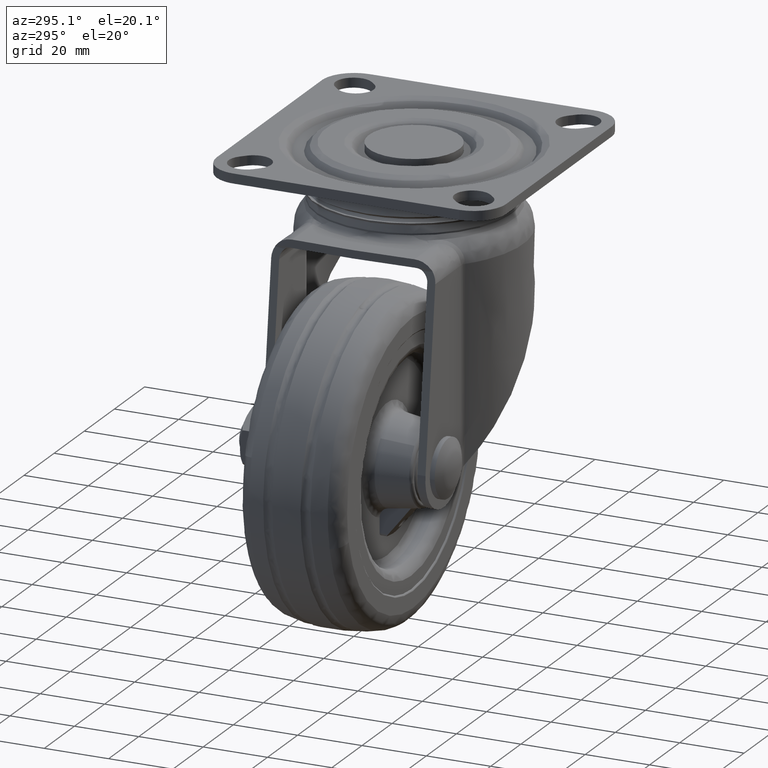
[diagram: clean part render]
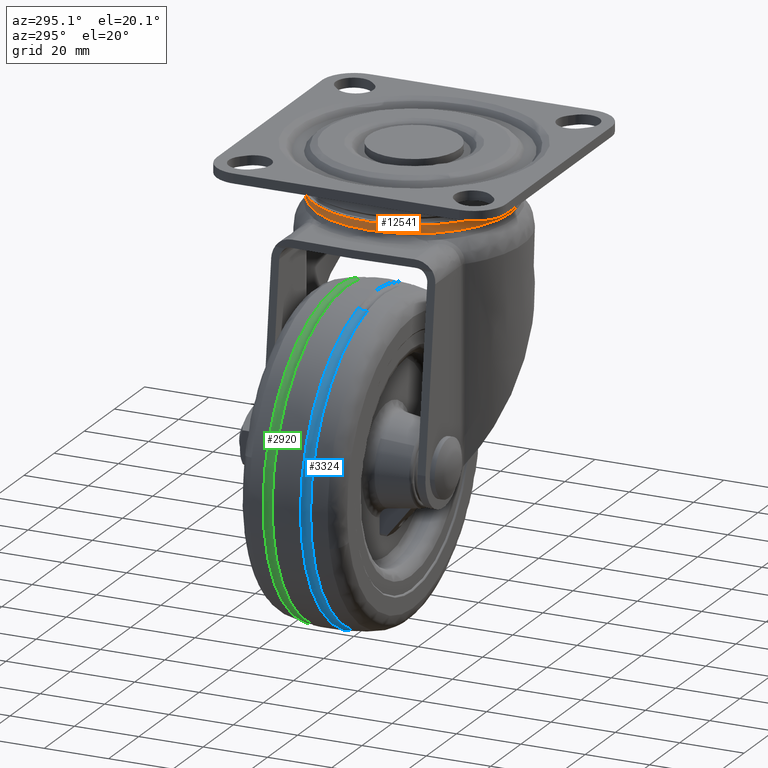
[diagram: same view with three faces highlighted in distinct colors, each labeled with its STEP entity id]
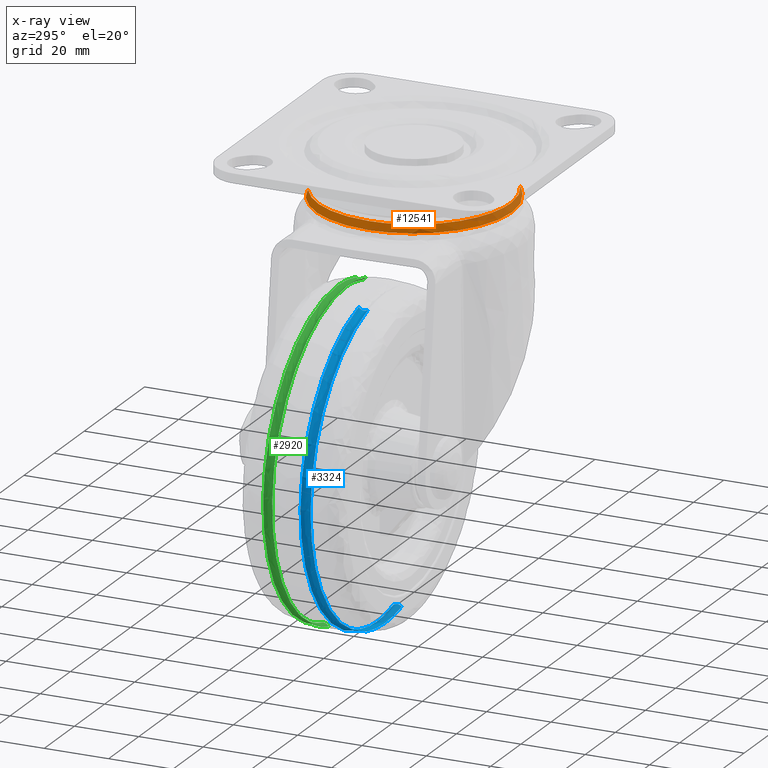
[diagram: x-ray of the same camera — body ghosted, the three highlighted faces saturated]
A machine part, auxiliary view with three faces highlighted in distinct colors.
The next image is the same camera in x-ray (body ghosted, the three faces saturated) — at least one of them is partly hidden behind the body in this view.
Their STEP definitions:

[orange] entity #12541 — the highlighted face is a freeform B-spline surface patch.
#12005=CARTESIAN_POINT('',(14.073565049866950,-26.379603227402718,-13.800000000326911));
#12006=VERTEX_POINT('',#12005);
#12020=CARTESIAN_POINT('',(-14.073565049866950,26.379603227402718,-13.800000000326911));
#12021=VERTEX_POINT('',#12020);
#12037=CARTESIAN_POINT('',(-29.898974892762801,0.0,-13.800000000000120));
#12038=VERTEX_POINT('',#12037);
#12039=CARTESIAN_POINT('',(-29.898974892762801,0.0,-13.800000000000120));
#12040=CARTESIAN_POINT('',(-29.898974892802048,17.936719043440196,-13.800000000163514));
#12041=CARTESIAN_POINT('',(-14.073565049866952,26.379603227402718,-13.800000000326916));
#12049=(BOUNDED_CURVE()B_SPLINE_CURVE(2,(#12039,#12040,#12041),.UNSPECIFIED.,.F.,.U.)B_SPLINE_CURVE_WITH_KNOTS((3,3),(0.0,0.169885466191445),.UNSPECIFIED.)CURVE()GEOMETRIC_REPRESENTATION_ITEM()RATIONAL_B_SPLINE_CURVE((1.0,0.800966795910255,0.872436381135416))REPRESENTATION_ITEM(''));
#12050=EDGE_CURVE('',#12038,#12021,#12049,.T.);
#12052=CARTESIAN_POINT('',(14.073565049866950,-26.379603227402715,-13.800000000326914));
#12053=CARTESIAN_POINT('',(7.476826567686530,-29.898974892898902,-13.800000000302397));
#12054=CARTESIAN_POINT('',(6.279498E-011,-29.898974892880499,-13.800000000261541));
#12055=CARTESIAN_POINT('',(-29.898974892739247,-29.898974892806937,-13.800000000098144));
#12056=CARTESIAN_POINT('',(-29.898974892762801,0.0,-13.800000000000120));
#12064=(BOUNDED_CURVE()B_SPLINE_CURVE(2,(#12052,#12053,#12054,#12055,#12056),.UNSPECIFIED.,.F.,.U.)B_SPLINE_CURVE_WITH_KNOTS((3,2,3),(0.669885466191445,0.750000000000000,1.0),.UNSPECIFIED.)CURVE()GEOMETRIC_REPRESENTATION_ITEM()RATIONAL_B_SPLINE_CURVE((0.872436381135417,0.906139985276292,1.0,0.707106781186547,1.0))REPRESENTATION_ITEM(''));
#12065=EDGE_CURVE('',#12006,#12038,#12064,.T.);
#12388=CARTESIAN_POINT('',(14.356469931048091,-26.909882406263169,-16.300008999993750));
#12389=VERTEX_POINT('',#12388);
#12390=CARTESIAN_POINT('',(14.073565049866950,-26.379603227402715,-13.800000000326907));
#12391=CARTESIAN_POINT('',(14.356469931070901,-26.909882406249331,-14.977758524370760));
#12392=CARTESIAN_POINT('',(14.356469931048089,-26.909882406263165,-16.300008999993754));
#12400=(BOUNDED_CURVE()B_SPLINE_CURVE(2,(#12390,#12391,#12392),.UNSPECIFIED.,.F.,.U.)B_SPLINE_CURVE_WITH_KNOTS((3,3),(-1.427451880174909,-0.562073949971355),.UNSPECIFIED.)CURVE()GEOMETRIC_REPRESENTATION_ITEM()RATIONAL_B_SPLINE_CURVE((0.942962511735772,0.917147045707271,0.943595087210526))REPRESENTATION_ITEM(''));
#12401=EDGE_CURVE('',#12006,#12389,#12400,.T.);
#12433=CARTESIAN_POINT('',(-14.356469931048091,26.909882406263161,-16.300008999993750));
#12434=VERTEX_POINT('',#12433);
#12447=CARTESIAN_POINT('',(-14.073565049866950,26.379603227402715,-13.800000000326907));
#12448=CARTESIAN_POINT('',(-14.356469931070901,26.909882406249331,-14.977758524370760));
#12449=CARTESIAN_POINT('',(-14.356469931048089,26.909882406263165,-16.300008999993754));
#12457=(BOUNDED_CURVE()B_SPLINE_CURVE(2,(#12447,#12448,#12449),.UNSPECIFIED.,.F.,.U.)B_SPLINE_CURVE_WITH_KNOTS((3,3),(-1.427451880174908,-0.562073949971355),.UNSPECIFIED.)CURVE()GEOMETRIC_REPRESENTATION_ITEM()RATIONAL_B_SPLINE_CURVE((0.942962511735772,0.917147045707271,0.943595087210526))REPRESENTATION_ITEM(''));
#12458=EDGE_CURVE('',#12021,#12434,#12457,.T.);
#12463=CARTESIAN_POINT('',(14.781507023864556,-25.934314056374600,-13.686415076328570));
#12464=CARTESIAN_POINT('',(14.415641972534775,-26.129503709340614,-13.686415076328563));
#12465=CARTESIAN_POINT('',(-12.281489605832965,-40.372470696839521,-13.686415076328565));
#12466=CARTESIAN_POINT('',(-26.326980151336244,-14.045490545503275,-13.686415076328569));
#12467=CARTESIAN_POINT('',(-40.372470696839521,12.281489605832963,-13.686415076328565));
#12468=CARTESIAN_POINT('',(-13.675339118500291,26.524456593316671,-13.686415076328567));
#12469=CARTESIAN_POINT('',(-13.309474067198364,26.719646246267821,-13.686415076328567));
#12470=CARTESIAN_POINT('',(15.124884523843031,-26.536773596525485,-14.969896073237388));
#12471=CARTESIAN_POINT('',(14.750520350843704,-26.736497545957281,-14.969896073237386));
#12472=CARTESIAN_POINT('',(-12.566791178267627,-41.310331635744696,-14.969896073237390));
#12473=CARTESIAN_POINT('',(-26.938561407006166,-14.371770228738532,-14.969896073237392));
#12474=CARTESIAN_POINT('',(-41.310331635744696,12.566791178267627,-14.969896073237390));
#12475=CARTESIAN_POINT('',(-13.993020106662536,27.140625268039489,-14.969896073237386));
#12476=CARTESIAN_POINT('',(-13.618655933691709,27.340349217456076,-14.969896073237384));
#12477=CARTESIAN_POINT('',(15.108042291073925,-26.507223716845477,-16.428202481602849));
#12478=CARTESIAN_POINT('',(14.734094989260099,-26.706725264761371,-16.428202481602852));
#12479=CARTESIAN_POINT('',(-12.552797496408346,-41.264330740988704,-16.428202481602863));
#12480=CARTESIAN_POINT('',(-26.908564118698525,-14.355766622290178,-16.428202481602860));
#12481=CARTESIAN_POINT('',(-41.264330740988704,12.552797496408346,-16.428202481602863));
#12482=CARTESIAN_POINT('',(-13.977438255349387,27.110402972620133,-16.428202481602849));
#12483=CARTESIAN_POINT('',(-13.603490953564028,27.309904520520831,-16.428202481602860));
#12491=(BOUNDED_SURFACE()B_SPLINE_SURFACE(2,2,((#12463,#12470,#12477),(#12464,#12471,#12478),(#12465,#12472,#12479),(#12466,#12473,#12480),(#12467,#12474,#12481),(#12468,#12475,#12482),(#12469,#12476,#12483)),.UNSPECIFIED.,.F.,.F.,.U.)B_SPLINE_SURFACE_WITH_KNOTS((3,1,2,1,3),(3,3),(0.0,1.010631580030875,51.542210577989707,102.073789575948600,103.084421155901100),(0.0,2.867891975747639),.UNSPECIFIED.)GEOMETRIC_REPRESENTATION_ITEM()RATIONAL_B_SPLINE_SURFACE(((0.956751107380312,0.925119020616230,0.957455030935860),(0.951211489807911,0.919762553773771,0.951911337624985),(0.668690993635108,0.646582744827387,0.669182978790046),(0.945671872235510,0.914406086931313,0.946367644314110),(0.668690993635108,0.646582744827387,0.669182978790046),(0.951211489807482,0.919762553773356,0.951911337624556),(0.956751107379454,0.925119020615400,0.957455030935001)))REPRESENTATION_ITEM('')SURFACE());
#12492=ORIENTED_EDGE('',*,*,#12050,.T.);
#12493=ORIENTED_EDGE('',*,*,#12458,.T.);
#12494=CARTESIAN_POINT('',(-30.500000000000000,0.0,-16.300008999999850));
#12495=VERTEX_POINT('',#12494);
#12496=CARTESIAN_POINT('',(-30.500000000000000,0.0,-16.300008999999850));
#12497=CARTESIAN_POINT('',(-30.500000000000004,18.297280518343474,-16.300008999996805));
#12498=CARTESIAN_POINT('',(-14.356469931048098,26.909882406263161,-16.300008999993747));
#12506=(BOUNDED_CURVE()B_SPLINE_CURVE(2,(#12496,#12497,#12498),.UNSPECIFIED.,.F.,.U.)B_SPLINE_CURVE_WITH_KNOTS((3,3),(0.0,0.169885466191720),.UNSPECIFIED.)CURVE()GEOMETRIC_REPRESENTATION_ITEM()RATIONAL_B_SPLINE_CURVE((1.0,0.800966795909932,0.872436381135648))REPRESENTATION_ITEM(''));
#12507=EDGE_CURVE('',#12495,#12434,#12506,.T.);
#12508=ORIENTED_EDGE('',*,*,#12507,.F.);
#12509=CARTESIAN_POINT('',(-14.083318197924839,-27.053837963138079,-16.300009000014001));
#12510=VERTEX_POINT('',#12509);
#12511=CARTESIAN_POINT('',(-14.083318197924836,-27.053837963138076,-16.300009000014001));
#12512=CARTESIAN_POINT('',(-30.499999999998980,-18.507865525229398,-16.300009000007442));
#12513=CARTESIAN_POINT('',(-30.500000000000000,0.0,-16.300008999999850));
#12521=(BOUNDED_CURVE()B_SPLINE_CURVE(2,(#12511,#12512,#12513),.UNSPECIFIED.,.F.,.U.)B_SPLINE_CURVE_WITH_KNOTS((3,3),(0.828552041301069,1.0),.UNSPECIFIED.)CURVE()GEOMETRIC_REPRESENTATION_ITEM()RATIONAL_B_SPLINE_CURVE((0.873773921761669,0.799136222070697,1.0))REPRESENTATION_ITEM(''));
#12522=EDGE_CURVE('',#12510,#12495,#12521,.T.);
#12523=ORIENTED_EDGE('',*,*,#12522,.F.);
#12524=CARTESIAN_POINT('',(14.356469931048091,-26.909882406263169,-16.300008999993750));
#12525=CARTESIAN_POINT('',(12.453181540129870,-27.925748417936099,-16.300008999995100));
#12526=CARTESIAN_POINT('',(9.651208042955560,-29.057200590294109,-16.300008999996908));
#12527=CARTESIAN_POINT('',(5.377636686964890,-30.085805339326878,-16.300009000000010));
#12528=CARTESIAN_POINT('',(1.930119505958197,-30.523633927419031,-16.300009000002369));
#12529=CARTESIAN_POINT('',(-2.160928374790150,-30.513335887508521,-16.300009000005300));
#12530=CARTESIAN_POINT('',(-6.294286140065233,-29.951398636289820,-16.300009000008188));
#12531=CARTESIAN_POINT('',(-10.378501734257370,-28.780711865338610,-16.300009000011329));
#12532=CARTESIAN_POINT('',(-12.921489068285370,-27.658694789417620,-16.300009000013080));
#12533=CARTESIAN_POINT('',(-14.083318197924839,-27.053837963138079,-16.300009000014001));
#12534=B_SPLINE_CURVE_WITH_KNOTS('',3,(#12524,#12525,#12526,#12527,#12528,#12529,#12530,#12531,#12532,#12533),.UNSPECIFIED.,.F.,.U.,(4,1,1,1,1,1,1,4),(-0.000000031275857,6.472162224791738,9.014750819830436,13.175364372881400,16.873619080567320,21.265406665802161,25.657156557545441,29.586701395527911),.UNSPECIFIED.);
#12535=EDGE_CURVE('',#12389,#12510,#12534,.T.);
#12536=ORIENTED_EDGE('',*,*,#12535,.F.);
#12537=ORIENTED_EDGE('',*,*,#12401,.F.);
#12538=ORIENTED_EDGE('',*,*,#12065,.T.);
#12539=EDGE_LOOP('',(#12492,#12493,#12508,#12523,#12536,#12537,#12538));
#12540=FACE_OUTER_BOUND('',#12539,.T.);
#12541=ADVANCED_FACE('',(#12540),#12491,.T.);

[blue] entity #3324 — the highlighted face is a freeform B-spline surface patch.
#3061=CARTESIAN_POINT('',(-35.0,-4.408305840501527,-131.805312161679410));
#3062=VERTEX_POINT('',#3061);
#3076=CARTESIAN_POINT('',(-46.169861854131433,-4.408307395997517,-33.463415006400552));
#3077=VERTEX_POINT('',#3076);
#3078=CARTESIAN_POINT('',(-46.169861854131433,-4.408307395997517,-33.463415006400552));
#3079=CARTESIAN_POINT('',(-49.302227609230762,-4.408307385114627,-34.183823392340877));
#3080=CARTESIAN_POINT('',(-54.615761798780269,-4.408307357848807,-35.963173630638892));
#3081=CARTESIAN_POINT('',(-61.803488880341639,-4.408307298282417,-39.805872105192158));
#3082=CARTESIAN_POINT('',(-67.359048319746250,-4.408307233948585,-43.933864579889793));
#3083=CARTESIAN_POINT('',(-71.956622635114627,-4.408307163439800,-48.443046981514293));
#3084=CARTESIAN_POINT('',(-75.165240153749735,-4.408307101055132,-52.424006973745023));
#3085=CARTESIAN_POINT('',(-78.088034298201705,-4.408307031716677,-56.842228914672233));
#3086=CARTESIAN_POINT('',(-80.327437803313430,-4.408306964434178,-61.123417679690853));
#3087=CARTESIAN_POINT('',(-82.469305707012467,-4.408306878489925,-66.584836506742079));
#3088=CARTESIAN_POINT('',(-84.019661856830965,-4.408306787660457,-72.349466856912386));
#3089=CARTESIAN_POINT('',(-84.948940528180472,-4.408306671967181,-79.681598213801607));
#3090=CARTESIAN_POINT('',(-84.757272507045130,-4.408306562553584,-86.604979282241374));
#3091=CARTESIAN_POINT('',(-83.764461478032757,-4.408306469479401,-92.486035713920629));
#3092=CARTESIAN_POINT('',(-82.445475390835341,-4.408306391291115,-97.421649498989709));
#3093=CARTESIAN_POINT('',(-80.439694526728232,-4.408306306978246,-102.737969763840700));
#3094=CARTESIAN_POINT('',(-77.173074004199933,-4.408306210104151,-108.836644270113790));
#3095=CARTESIAN_POINT('',(-73.380355748682618,-4.408306128988490,-113.932581315817700));
#3096=CARTESIAN_POINT('',(-69.146023623778262,-4.408306057841518,-118.393109772716700));
#3097=CARTESIAN_POINT('',(-65.460741990235704,-4.408306007891116,-121.517563828079200));
#3098=CARTESIAN_POINT('',(-61.168744034811930,-4.408305960744084,-124.458435650562290));
#3099=CARTESIAN_POINT('',(-57.119332681742918,-4.408305924344180,-126.721531307333000));
#3100=CARTESIAN_POINT('',(-52.252502003237979,-4.408305890411465,-128.820220644424010));
#3101=CARTESIAN_POINT('',(-47.370528390758970,-4.408305865623023,-130.339976028950700));
#3102=CARTESIAN_POINT('',(-41.522676889559790,-4.408305846304985,-131.503746322455100));
#3103=CARTESIAN_POINT('',(-37.457843366670552,-4.408305840890526,-131.805469995879690));
#3104=CARTESIAN_POINT('',(-35.0,-4.408305840501527,-131.805312161679410));
#3105=B_SPLINE_CURVE_WITH_KNOTS('',3,(#3078,#3079,#3080,#3081,#3082,#3083,#3084,#3085,#3086,#3087,#3088,#3089,#3090,#3091,#3092,#3093,#3094,#3095,#3096,#3097,#3098,#3099,#3100,#3101,#3102,#3103,#3104),.UNSPECIFIED.,.F.,.U.,(4,1,1,1,1,1,1,1,1,1,1,1,1,1,1,1,1,1,1,1,1,1,1,1,4),(0.000000087714824,9.642330463001855,16.732280097808140,24.389468871214660,30.345052482250850,36.017041409808947,39.703809663414823,46.226628341976003,50.480606520047118,57.286960901873371,64.093335095321251,72.601222069173801,77.989546035402810,81.959918420604367,87.915534286684235,95.005485224787463,102.662673779947400,106.916666242018000,113.439454863829000,117.126243963738700,122.514612192306300,127.335820377456300,133.007795155829800,137.828960016580400,145.202466896015410),.UNSPECIFIED.);
#3106=EDGE_CURVE('',#3077,#3062,#3105,.T.);
#3154=CARTESIAN_POINT('',(-23.830138055161711,-4.408306518349894,-130.536615160144010));
#3155=VERTEX_POINT('',#3154);
#3184=CARTESIAN_POINT('',(-35.0,-4.408305840501527,-131.805312161679410));
#3185=CARTESIAN_POINT('',(-29.343018644268330,-4.408306170293177,-131.805310912014050));
#3186=CARTESIAN_POINT('',(-23.830138055161711,-4.408306518349894,-130.536615160144010));
#3194=(BOUNDED_CURVE()B_SPLINE_CURVE(2,(#3184,#3185,#3186),.UNSPECIFIED.,.F.,.U.)B_SPLINE_CURVE_WITH_KNOTS((3,3),(0.0,0.038352880658712),.UNSPECIFIED.)CURVE()GEOMETRIC_REPRESENTATION_ITEM()RATIONAL_B_SPLINE_CURVE((1.0,0.955066805332406,0.923920150286420))REPRESENTATION_ITEM(''));
#3195=EDGE_CURVE('',#3062,#3155,#3194,.T.);
#3203=CARTESIAN_POINT('',(-44.770443407940277,-7.457534102860008,-33.362675527515918));
#3204=CARTESIAN_POINT('',(-45.442038359418916,-7.457534102860008,-33.517231666524374));
#3205=CARTESIAN_POINT('',(-94.447917921927981,-7.457534102860007,-44.795100145462250));
#3206=CARTESIAN_POINT('',(-83.326416332324683,-7.457534102860008,-93.121516477786912));
#3207=CARTESIAN_POINT('',(-72.204914742721371,-7.457534102860007,-141.447932810111580));
#3208=CARTESIAN_POINT('',(-23.199039806210951,-7.457534102860007,-130.170065395768520));
#3209=CARTESIAN_POINT('',(-22.527449373902080,-7.457534102860007,-130.015510296770090));
#3210=CARTESIAN_POINT('',(-44.601587588313222,-6.836483543638644,-34.203241043258096));
#3211=CARTESIAN_POINT('',(-45.261575828483622,-6.836483543638645,-34.355126095352574));
#3212=CARTESIAN_POINT('',(-93.420520649694510,-6.836483543638644,-45.438086969164800));
#3213=CARTESIAN_POINT('',(-82.491224284356662,-6.836483543638644,-92.929311253521462));
#3214=CARTESIAN_POINT('',(-71.561927919018814,-6.836483543638644,-140.420535537878150));
#3215=CARTESIAN_POINT('',(-23.402987643858644,-6.836483543638644,-129.337575710262060));
#3216=CARTESIAN_POINT('',(-22.743003844756313,-6.836483543638645,-129.185691680203750));
#3217=CARTESIAN_POINT('',(-44.626422991737762,-5.785625111829236,-34.079610221801587));
#3218=CARTESIAN_POINT('',(-45.288118353157572,-5.785625111829235,-34.231888138774757));
#3219=CARTESIAN_POINT('',(-93.571630784894666,-5.785625111829234,-45.343516126427012));
#3220=CARTESIAN_POINT('',(-82.614064773325623,-5.785625111829234,-92.957580899752642));
#3221=CARTESIAN_POINT('',(-71.656498761756581,-5.785625111829234,-140.571645673078280));
#3222=CARTESIAN_POINT('',(-23.372990887828973,-5.785625111829232,-129.460018734328140));
#3223=CARTESIAN_POINT('',(-22.711299978964487,-5.785625111829234,-129.307741842034860));
#3224=CARTESIAN_POINT('',(-44.651176987079502,-4.738211293692380,-33.956384650381686));
#3225=CARTESIAN_POINT('',(-45.314573873968158,-4.738211293692380,-34.109054144459932));
#3226=CARTESIAN_POINT('',(-93.722245595489682,-4.738211293692380,-45.249255277888338));
#3227=CARTESIAN_POINT('',(-82.736502602892472,-4.738211293692380,-92.985757880780810));
#3228=CARTESIAN_POINT('',(-71.750759610295262,-4.738211293692380,-140.722260483673300));
#3229=CARTESIAN_POINT('',(-23.343092458303470,-4.738211293692380,-129.582060401844360));
#3230=CARTESIAN_POINT('',(-22.679700035419721,-4.738211293692381,-129.429391935080840));
#3231=CARTESIAN_POINT('',(-44.843322351277607,-4.335980095583953,-32.999883609959362));
#3232=CARTESIAN_POINT('',(-45.519926812393720,-4.335980095583953,-33.155592602285409));
#3233=CARTESIAN_POINT('',(-94.891347279313450,-4.335980095583953,-44.517584094225370));
#3234=CARTESIAN_POINT('',(-83.686889036635861,-4.335980095583953,-93.204473130861231));
#3235=CARTESIAN_POINT('',(-72.482430793958230,-4.335980095583953,-141.891362167497110));
#3236=CARTESIAN_POINT('',(-23.111014987543026,-4.335980095583953,-130.529371748092900));
#3237=CARTESIAN_POINT('',(-22.434415079305722,-4.335980095583953,-130.373663803534360));
#3245=(BOUNDED_SURFACE()B_SPLINE_SURFACE(2,2,((#3203,#3210,#3217,#3224,#3231),(#3204,#3211,#3218,#3225,#3232),(#3205,#3212,#3219,#3226,#3233),(#3206,#3213,#3220,#3227,#3234),(#3207,#3214,#3221,#3228,#3235),(#3208,#3215,#3222,#3229,#3236),(#3209,#3216,#3223,#3230,#3237)),.UNSPECIFIED.,.F.,.F.,.U.)B_SPLINE_SURFACE_WITH_KNOTS((3,1,2,1,3),(3,2,3),(0.0,1.655524115398991,84.431157345761775,167.206790576124600,168.862303354170510),(0.0,1.959926086438704,3.914410956391913),.UNSPECIFIED.)GEOMETRIC_REPRESENTATION_ITEM()RATIONAL_B_SPLINE_SURFACE(((0.975668134300791,0.856446042719927,1.011715809787478,0.856877108167809,0.975008272723286),(0.970018947954888,0.851487160575022,1.005857904893739,0.851915730123985,0.969362907021804),(0.681912398004967,0.598585886144110,0.707106781186548,0.598887165711340,0.681451208616026),(0.964369761608984,0.846528278430118,1.0,0.846954352080161,0.963717541320321),(0.681912398004967,0.598585886144110,0.707106781186548,0.598887165711340,0.681451208616026),(0.970018909268154,0.851487126615627,1.005857864777661,0.851915696147498,0.969362868361235),(0.975668056927324,0.856445974801137,1.011715729555321,0.856877040214834,0.975008195402149)))REPRESENTATION_ITEM('')SURFACE());
#3246=ORIENTED_EDGE('',*,*,#3106,.T.);
#3247=ORIENTED_EDGE('',*,*,#3195,.T.);
#3248=CARTESIAN_POINT('',(-23.908319311126320,-7.351242319638072,-130.196850043440410));
#3249=VERTEX_POINT('',#3248);
#3250=CARTESIAN_POINT('',(-23.908319311126320,-7.351242319638072,-130.196850043440410));
#3251=CARTESIAN_POINT('',(-23.935795756473141,-7.243463556759735,-130.077457605603000));
#3252=CARTESIAN_POINT('',(-23.992195748710952,-6.952800454130847,-129.832385690848810));
#3253=CARTESIAN_POINT('',(-24.040022326976981,-6.442660209419794,-129.624571180310600));
#3254=CARTESIAN_POINT('',(-24.049314444134819,-5.913524333546907,-129.584201569493900));
#3255=CARTESIAN_POINT('',(-24.031152613629700,-5.464181694761163,-129.663127040202800));
#3256=CARTESIAN_POINT('',(-23.994394393440100,-5.097334530003401,-129.822858615542910));
#3257=CARTESIAN_POINT('',(-23.931714901888739,-4.715257000878502,-130.095226670571290));
#3258=CARTESIAN_POINT('',(-23.873312692443161,-4.509765332021535,-130.349006014146400));
#3259=CARTESIAN_POINT('',(-23.830138055161711,-4.408306518349894,-130.536615160144010));
#3260=B_SPLINE_CURVE_WITH_KNOTS('',3,(#3250,#3251,#3252,#3253,#3254,#3255,#3256,#3257,#3258,#3259),.UNSPECIFIED.,.F.,.U.,(4,1,1,1,1,1,1,4),(0.000000366110781,0.489562964515132,1.142365964334642,1.631968877564200,2.067072847998684,2.502233595595408,2.828645740783392,3.481409388435796),.UNSPECIFIED.);
#3261=EDGE_CURVE('',#3249,#3155,#3260,.T.);
#3262=ORIENTED_EDGE('',*,*,#3261,.F.);
#3263=CARTESIAN_POINT('',(-35.0,-7.351245960951585,-131.456662309210290));
#3264=VERTEX_POINT('',#3263);
#3265=CARTESIAN_POINT('',(-35.0,-7.351245960951585,-131.456662309210290));
#3266=CARTESIAN_POINT('',(-29.382613463973577,-7.351244140295198,-131.456663870115560));
#3267=CARTESIAN_POINT('',(-23.908319311126320,-7.351242319638072,-130.196850043440350));
#3275=(BOUNDED_CURVE()B_SPLINE_CURVE(2,(#3265,#3266,#3267),.UNSPECIFIED.,.F.,.U.)B_SPLINE_CURVE_WITH_KNOTS((3,3),(0.0,0.038352911149033),.UNSPECIFIED.)CURVE()GEOMETRIC_REPRESENTATION_ITEM()RATIONAL_B_SPLINE_CURVE((1.0,0.955066769610774,0.923920100763604))REPRESENTATION_ITEM(''));
#3276=EDGE_CURVE('',#3264,#3249,#3275,.T.);
#3277=ORIENTED_EDGE('',*,*,#3276,.F.);
#3278=CARTESIAN_POINT('',(-46.091680688871982,-7.351242319599447,-33.803179732934098));
#3279=VERTEX_POINT('',#3278);
#3280=CARTESIAN_POINT('',(-46.091680688871982,-7.351242319599447,-33.803179732934098));
#3281=CARTESIAN_POINT('',(-49.019103372565638,-7.351242332149622,-34.476588553946748));
#3282=CARTESIAN_POINT('',(-53.496712762633067,-7.351242367575690,-35.947466288783787));
#3283=CARTESIAN_POINT('',(-58.803635890704598,-7.351242442104386,-38.574716363373120));
#3284=CARTESIAN_POINT('',(-63.614835837797401,-7.351242530061908,-41.510442878167332));
#3285=CARTESIAN_POINT('',(-68.275319154639334,-7.351242645801142,-45.183708128730750));
#3286=CARTESIAN_POINT('',(-72.490442412973493,-7.351242791141277,-49.610464593813887));
#3287=CARTESIAN_POINT('',(-75.710023944582787,-7.351242930880865,-53.772016816867612));
#3288=CARTESIAN_POINT('',(-78.202462203245858,-7.351243067200392,-57.758077116139049));
#3289=CARTESIAN_POINT('',(-80.576056326247368,-7.351243234011538,-62.558908291020572));
#3290=CARTESIAN_POINT('',(-82.172894293345365,-7.351243386487973,-66.882131283352294));
#3291=CARTESIAN_POINT('',(-83.486040629088393,-7.351243564927106,-71.878378754038522));
#3292=CARTESIAN_POINT('',(-84.448079430262680,-7.351243776108693,-77.724160170878619));
#3293=CARTESIAN_POINT('',(-84.572652428864473,-7.351244032203072,-84.694827922359167));
#3294=CARTESIAN_POINT('',(-83.686548542828689,-7.351244279617197,-91.314913501741785));
#3295=CARTESIAN_POINT('',(-82.130049055903925,-7.351244510771914,-97.417186440162624));
#3296=CARTESIAN_POINT('',(-79.888937061341551,-7.351244729726336,-103.110292417138690));
#3297=CARTESIAN_POINT('',(-76.590385275332181,-7.351244961197356,-109.023301971077200));
#3298=CARTESIAN_POINT('',(-72.376515167410503,-7.351245187267273,-114.685597442452600));
#3299=CARTESIAN_POINT('',(-67.139247385697900,-7.351245398847591,-119.838121306324100));
#3300=CARTESIAN_POINT('',(-61.650659504623981,-7.351245567986681,-123.809194094777990));
#3301=CARTESIAN_POINT('',(-56.217358853601603,-7.351245700998994,-126.805213987277300));
#3302=CARTESIAN_POINT('',(-51.508062753173142,-7.351245790811342,-128.709973519270510));
#3303=CARTESIAN_POINT('',(-46.459916744476502,-7.351245866304639,-130.187323595346610));
#3304=CARTESIAN_POINT('',(-41.289284290231258,-7.351245924683801,-131.185781054678390));
#3305=CARTESIAN_POINT('',(-37.159004851811908,-7.351245951927021,-131.456737797415510));
#3306=CARTESIAN_POINT('',(-35.0,-7.351245960951585,-131.456662309210290));
#3307=B_SPLINE_CURVE_WITH_KNOTS('',3,(#3280,#3281,#3282,#3283,#3284,#3285,#3286,#3287,#3288,#3289,#3290,#3291,#3292,#3293,#3294,#3295,#3296,#3297,#3298,#3299,#3300,#3301,#3302,#3303,#3304,#3305,#3306),.UNSPECIFIED.,.F.,.U.,(4,1,1,1,1,1,1,1,1,1,1,1,1,1,1,1,1,1,1,1,1,1,1,1,4),(0.000000091535355,9.011582526981442,14.080626635020680,17.741606627492601,25.908425035923809,31.822320090661311,36.046517943642840,41.678793872199073,45.903002610882652,52.098515895665237,55.477877918492602,61.391758369155440,69.839983888995249,76.317178370121496,81.386197335555920,88.708138523974213,94.622067096149905,101.662392091088190,109.829197309846710,116.587920407238000,121.938569835284400,128.415729984085090,131.795100469066510,137.708996259763100,144.186010093222710),.UNSPECIFIED.);
#3308=EDGE_CURVE('',#3279,#3264,#3307,.T.);
#3309=ORIENTED_EDGE('',*,*,#3308,.F.);
#3310=CARTESIAN_POINT('',(-46.091680688871982,-7.351242319599447,-33.803179732934098));
#3311=CARTESIAN_POINT('',(-46.045815644950778,-7.171825461874753,-34.002475512486228));
#3312=CARTESIAN_POINT('',(-45.985156154026569,-6.793666189975951,-34.266055057299774));
#3313=CARTESIAN_POINT('',(-45.947277677778722,-6.117439966785407,-34.430639470627781));
#3314=CARTESIAN_POINT('',(-45.960442305364019,-5.547547488806378,-34.373426715398253));
#3315=CARTESIAN_POINT('',(-46.005613537547440,-5.097337082573122,-34.177136695218053));
#3316=CARTESIAN_POINT('',(-46.068287939781463,-4.715274456289339,-33.904790754571373));
#3317=CARTESIAN_POINT('',(-46.126684411617163,-4.509745810626986,-33.651036341908217));
#3318=CARTESIAN_POINT('',(-46.169861854131433,-4.408307395997517,-33.463415006400552));
#3319=B_SPLINE_CURVE_WITH_KNOTS('',3,(#3310,#3311,#3312,#3313,#3314,#3315,#3316,#3317,#3318),.UNSPECIFIED.,.F.,.U.,(4,1,1,1,1,1,4),(0.000000366300217,0.815956914724755,1.359939850545971,2.067072144312248,2.502232742685911,2.828644776592076,3.481408201802198),.UNSPECIFIED.);
#3320=EDGE_CURVE('',#3279,#3077,#3319,.T.);
#3321=ORIENTED_EDGE('',*,*,#3320,.T.);
#3322=EDGE_LOOP('',(#3246,#3247,#3262,#3277,#3309,#3321));
#3323=FACE_OUTER_BOUND('',#3322,.T.);
#3324=ADVANCED_FACE('',(#3323),#3245,.F.);

[green] entity #2920 — the highlighted face is a freeform B-spline surface patch.
#2643=CARTESIAN_POINT('',(-35.0,7.351240615127163,-32.543366672551663));
#2644=VERTEX_POINT('',#2643);
#2675=CARTESIAN_POINT('',(-47.299368601823772,7.351236604135994,-129.902892869795100));
#2676=VERTEX_POINT('',#2675);
#2690=CARTESIAN_POINT('',(-35.0,7.351240615127163,-32.543366672551663));
#2691=CARTESIAN_POINT('',(-37.884900692178967,7.351240611506647,-32.543101226916313));
#2692=CARTESIAN_POINT('',(-43.561572196745438,7.351240583907864,-33.041488962140733));
#2693=CARTESIAN_POINT('',(-50.511949934759762,7.351240499386943,-34.887843654472753));
#2694=CARTESIAN_POINT('',(-56.199711721528317,7.351240396402456,-37.222836035300944));
#2695=CARTESIAN_POINT('',(-60.638170896813463,7.351240293399751,-39.596585403811098));
#2696=CARTESIAN_POINT('',(-65.488705745559997,7.351240151586885,-42.903396542453862));
#2697=CARTESIAN_POINT('',(-70.329425647224213,7.351239971352310,-47.146734194501697));
#2698=CARTESIAN_POINT('',(-74.754614501683903,7.351239753254980,-52.325443204444838));
#2699=CARTESIAN_POINT('',(-78.083788181559058,7.351239536661402,-57.501105712580220));
#2700=CARTESIAN_POINT('',(-80.435622744594411,7.351239338261776,-62.263418838155452));
#2701=CARTESIAN_POINT('',(-82.503170095942295,7.351239110214666,-67.756883053009972));
#2702=CARTESIAN_POINT('',(-83.989874334873718,7.351238851137921,-74.024282707273741));
#2703=CARTESIAN_POINT('',(-84.631974177097675,7.351238545232683,-81.458630842642364));
#2704=CARTESIAN_POINT('',(-84.247358486918586,7.351238285684334,-87.794915888290205));
#2705=CARTESIAN_POINT('',(-83.220069158722140,7.351238061503402,-93.289092997263268));
#2706=CARTESIAN_POINT('',(-81.878731172971555,7.351237868192256,-98.040696872635223));
#2707=CARTESIAN_POINT('',(-79.530156070551129,7.351237629500211,-103.928982104087400));
#2708=CARTESIAN_POINT('',(-76.198003974943788,7.351237398342144,-109.663888978689200));
#2709=CARTESIAN_POINT('',(-71.813621638975874,7.351237175570220,-115.226703614028100));
#2710=CARTESIAN_POINT('',(-67.352884364796267,7.351237001416617,-119.607167894867300));
#2711=CARTESIAN_POINT('',(-61.672511323149529,7.351236834695681,-123.843928808761600));
#2712=CARTESIAN_POINT('',(-55.117474160003823,7.351236696090996,-127.422401743552000));
#2713=CARTESIAN_POINT('',(-50.003574233602151,7.351236629215904,-129.208820088147600));
#2714=CARTESIAN_POINT('',(-47.299368601823772,7.351236604135994,-129.902892869795100));
#2715=B_SPLINE_CURVE_WITH_KNOTS('',3,(#2690,#2691,#2692,#2693,#2694,#2695,#2696,#2697,#2698,#2699,#2700,#2701,#2702,#2703,#2704,#2705,#2706,#2707,#2708,#2709,#2710,#2711,#2712,#2713,#2714),.UNSPECIFIED.,.F.,.U.,(4,1,1,1,1,1,1,1,1,1,1,1,1,1,1,1,1,1,1,1,1,1,4),(0.000000016149812,8.654664128272685,17.030283925963420,21.497243625690519,27.080992991147340,32.106350395963076,39.085997990136647,46.344850293103363,52.486949660067538,57.512264413622091,62.258470005912542,70.075625658073974,76.776082898721739,84.593198799207642,89.060169450754984,93.527149332267584,99.390057717493505,108.044829445361900,113.349352394258700,120.608183346913090,126.750278032395400,134.567487045813210,142.943023437335310),.UNSPECIFIED.);
#2716=EDGE_CURVE('',#2644,#2676,#2715,.T.);
#2751=CARTESIAN_POINT('',(-22.700631300615019,7.351238632674832,-34.097136526596458));
#2752=VERTEX_POINT('',#2751);
#2753=CARTESIAN_POINT('',(-22.700631300615015,7.351238632674832,-34.097136526596451));
#2754=CARTESIAN_POINT('',(-28.752172156787481,7.351239648042392,-32.543365849506692));
#2755=CARTESIAN_POINT('',(-35.0,7.351240615127163,-32.543366672551663));
#2763=(BOUNDED_CURVE()B_SPLINE_CURVE(2,(#2753,#2754,#2755),.UNSPECIFIED.,.F.,.U.)B_SPLINE_CURVE_WITH_KNOTS((3,3),(0.457556762484042,0.500000000000000),.UNSPECIFIED.)CURVE()GEOMETRIC_REPRESENTATION_ITEM()RATIONAL_B_SPLINE_CURVE((0.917433345679474,0.950274654188349,1.0))REPRESENTATION_ITEM(''));
#2764=EDGE_CURVE('',#2752,#2644,#2763,.T.);
#2801=CARTESIAN_POINT('',(-21.222749854089024,4.335981218941809,-33.957419833555718));
#2802=CARTESIAN_POINT('',(-21.895223047440361,4.335981218941808,-33.784758063985976));
#2803=CARTESIAN_POINT('',(-70.965516206544862,4.335981218941808,-21.185648190276908));
#2804=CARTESIAN_POINT('',(-83.389941452225798,4.335981218941809,-69.575589642502692));
#2805=CARTESIAN_POINT('',(-95.814366697906692,4.335981218941808,-117.965531094728520));
#2806=CARTESIAN_POINT('',(-46.744073538924724,4.335981218941809,-130.564640968406110));
#2807=CARTESIAN_POINT('',(-46.071600345693099,4.335981218941809,-130.737302737945100));
#2808=CARTESIAN_POINT('',(-21.491686300886656,4.738213258677939,-34.895227064468457));
#2809=CARTESIAN_POINT('',(-22.151032596687955,4.738213258677939,-34.725935709336575));
#2810=CARTESIAN_POINT('',(-70.263457520421539,4.738213258677940,-22.372764597453212));
#2811=CARTESIAN_POINT('',(-82.445353905575971,4.738213258677940,-69.818118503029183));
#2812=CARTESIAN_POINT('',(-94.627250290730373,4.738213258677940,-117.263472408605200));
#2813=CARTESIAN_POINT('',(-46.514825367116963,4.738213258677940,-129.616643520457700));
#2814=CARTESIAN_POINT('',(-45.855479071433024,4.738213258677940,-129.785934875559410));
#2815=CARTESIAN_POINT('',(-21.526333278050359,5.785625111829236,-35.016044402915085));
#2816=CARTESIAN_POINT('',(-22.183988440778904,5.785625111829236,-34.847187256955856));
#2817=CARTESIAN_POINT('',(-70.173011574714565,5.785625111829234,-22.525700339483883));
#2818=CARTESIAN_POINT('',(-82.323663061707151,5.785625111829234,-69.849363401191013));
#2819=CARTESIAN_POINT('',(-94.474314548699695,5.785625111829234,-117.173026462898220));
#2820=CARTESIAN_POINT('',(-46.485291414883918,5.785625111829234,-129.494513380339380));
#2821=CARTESIAN_POINT('',(-45.827636252272434,5.785625111829235,-129.663370526268580));
#2822=CARTESIAN_POINT('',(-21.561094191419475,6.836481367403091,-35.137259047857704));
#2823=CARTESIAN_POINT('',(-22.217052659802668,6.836481367403091,-34.968837538963243));
#2824=CARTESIAN_POINT('',(-70.082268198504408,6.836481367403089,-22.679139009029416));
#2825=CARTESIAN_POINT('',(-82.201572038829312,6.836481367403091,-69.880711047858711));
#2826=CARTESIAN_POINT('',(-94.320875879154187,6.836481367403089,-117.082283086688070));
#2827=CARTESIAN_POINT('',(-46.455660340572010,6.836481367403092,-129.371981616591260));
#2828=CARTESIAN_POINT('',(-45.799701872305576,6.836481367403091,-129.540403125455640));
#2829=CARTESIAN_POINT('',(-21.324755174889688,7.457532191428366,-34.313122188433724));
#2830=CARTESIAN_POINT('',(-21.992249446969261,7.457532191428366,-34.141738788568261));
#2831=CARTESIAN_POINT('',(-70.699231281791654,7.457532191428365,-21.635911408162247));
#2832=CARTESIAN_POINT('',(-83.031667380906526,7.457532191428366,-69.667578789068756));
#2833=CARTESIAN_POINT('',(-95.364103480021313,7.457532191428365,-117.699246169975320));
#2834=CARTESIAN_POINT('',(-46.657121645320608,7.457532191428365,-130.205073550350050));
#2835=CARTESIAN_POINT('',(-45.989627373359838,7.457532191428365,-130.376456950185000));
#2843=(BOUNDED_SURFACE()B_SPLINE_SURFACE(2,2,((#2801,#2808,#2815,#2822,#2829),(#2802,#2809,#2816,#2823,#2830),(#2803,#2810,#2817,#2824,#2831),(#2804,#2811,#2818,#2825,#2832),(#2805,#2812,#2819,#2826,#2833),(#2806,#2813,#2820,#2827,#2834),(#2807,#2814,#2821,#2828,#2835)),.UNSPECIFIED.,.F.,.F.,.U.)B_SPLINE_SURFACE_WITH_KNOTS((3,1,2,1,3),(3,2,3),(0.0,1.655512574509919,84.431141292218214,167.206770009926490,168.862282584136610),(0.0,1.954481698426481,3.914404282749215),.UNSPECIFIED.)GEOMETRIC_REPRESENTATION_ITEM()RATIONAL_B_SPLINE_SURFACE(((0.975007819229059,0.856877285561662,1.011715728753640,0.856446246323771,0.975667638141854),(0.969362494748023,0.851915940409322,1.005857864376820,0.851487396901531,0.970018493289546),(0.681450946241696,0.598887337663320,0.707106781186548,0.598586076390605,0.681912105848424),(0.963717170266986,0.846954595256982,1.0,0.846528547479291,0.964369348437238),(0.681450946241696,0.598887337663320,0.707106781186548,0.598586076390605,0.681912105848424),(0.969362494747000,0.851915940408423,1.005857864375759,0.851487396900633,0.970018493288522),(0.975007819227014,0.856877285559865,1.011715728751518,0.856446246321975,0.975667638139807)))REPRESENTATION_ITEM('')SURFACE());
#2844=ORIENTED_EDGE('',*,*,#2764,.T.);
#2845=ORIENTED_EDGE('',*,*,#2716,.T.);
#2846=CARTESIAN_POINT('',(-47.386073328474879,4.408308553786521,-130.240585484365790));
#2847=VERTEX_POINT('',#2846);
#2848=CARTESIAN_POINT('',(-47.386073328474879,4.408308553786521,-130.240585484365790));
#2849=CARTESIAN_POINT('',(-47.346187626917953,4.492904954910501,-130.085240933214490));
#2850=CARTESIAN_POINT('',(-47.272878031965767,4.711158341595457,-129.799718912080410));
#2851=CARTESIAN_POINT('',(-47.197460081975613,5.125560620365182,-129.505985390229000));
#2852=CARTESIAN_POINT('',(-47.151106027174698,5.621382995997918,-129.325448266503600));
#2853=CARTESIAN_POINT('',(-47.140433915775148,6.208102495446336,-129.283883136891600));
#2854=CARTESIAN_POINT('',(-47.187787503935283,6.845681470333315,-129.468313186042310));
#2855=CARTESIAN_POINT('',(-47.258723462215777,7.207588438805038,-129.744590502717500));
#2856=CARTESIAN_POINT('',(-47.299368601823772,7.351236604135994,-129.902892869795100));
#2857=B_SPLINE_CURVE_WITH_KNOTS('',3,(#2848,#2849,#2850,#2851,#2852,#2853,#2854,#2855,#2856),.UNSPECIFIED.,.F.,.U.,(4,1,1,1,1,1,4),(0.000000372559305,0.543967611759525,1.087945587550943,1.523180176815695,2.121463979704383,2.828638644434639,3.481400431219589),.UNSPECIFIED.);
#2858=EDGE_CURVE('',#2847,#2676,#2857,.T.);
#2859=ORIENTED_EDGE('',*,*,#2858,.F.);
#2860=CARTESIAN_POINT('',(-35.0,4.408311027804690,-32.194718073820837));
#2861=VERTEX_POINT('',#2860);
#2862=CARTESIAN_POINT('',(-35.0,4.408311027804690,-32.194718073820837));
#2863=CARTESIAN_POINT('',(-38.092682581541631,4.408311018109707,-32.194361841127559));
#2864=CARTESIAN_POINT('',(-43.528184075672399,4.408310988428827,-32.702720273726698));
#2865=CARTESIAN_POINT('',(-51.433840458324269,4.408310912053774,-34.779055320854162));
#2866=CARTESIAN_POINT('',(-58.076344683578633,4.408310819649970,-37.660324452514963));
#2867=CARTESIAN_POINT('',(-64.457736023593057,4.408310701130776,-41.626058081910088));
#2868=CARTESIAN_POINT('',(-70.138282503719296,4.408310564479193,-46.410385833571702));
#2869=CARTESIAN_POINT('',(-74.687370227685363,4.408310419479287,-51.673781814266079));
#2870=CARTESIAN_POINT('',(-77.889815009467412,4.408310288789860,-56.531119890883289));
#2871=CARTESIAN_POINT('',(-80.172544464000651,4.408310174548683,-60.842396810868337));
#2872=CARTESIAN_POINT('',(-82.067890336421414,4.408310054398184,-65.440536407945203));
#2873=CARTESIAN_POINT('',(-83.845384313381942,4.408309899012073,-71.472247206369815));
#2874=CARTESIAN_POINT('',(-84.776084888156078,4.408309741297438,-77.704680940757839));
#2875=CARTESIAN_POINT('',(-84.868271506473334,4.408309561560551,-84.929726955568555));
#2876=CARTESIAN_POINT('',(-84.159783296033766,4.408309417707096,-90.811162220789285));
#2877=CARTESIAN_POINT('',(-82.715038269190018,4.408309279900384,-96.542137394489927));
#2878=CARTESIAN_POINT('',(-80.727689292689718,4.408309147849391,-102.109943799887110));
#2879=CARTESIAN_POINT('',(-77.671253273758253,4.408309010018237,-108.045508879954890));
#2880=CARTESIAN_POINT('',(-73.713262679058033,4.408308886229730,-113.529585815471900));
#2881=CARTESIAN_POINT('',(-69.506902887620271,4.408308786493176,-118.076639264636800));
#2882=CARTESIAN_POINT('',(-64.646241400403923,4.408308698863535,-122.218898750156200));
#2883=CARTESIAN_POINT('',(-59.495438084658403,4.408308633486925,-125.501848278565900));
#2884=CARTESIAN_POINT('',(-53.663608205284923,4.408308582014740,-128.310977978437190));
#2885=CARTESIAN_POINT('',(-49.837004240880837,4.408308561722415,-129.611463302180710));
#2886=CARTESIAN_POINT('',(-47.386073328474879,4.408308553786521,-130.240585484365790));
#2887=B_SPLINE_CURVE_WITH_KNOTS('',3,(#2862,#2863,#2864,#2865,#2866,#2867,#2868,#2869,#2870,#2871,#2872,#2873,#2874,#2875,#2876,#2877,#2878,#2879,#2880,#2881,#2882,#2883,#2884,#2885,#2886),.UNSPECIFIED.,.F.,.U.,(4,1,1,1,1,1,1,1,1,1,1,1,1,1,1,1,1,1,1,1,1,1,4),(0.000000012908544,9.277992194297610,16.306916429330911,24.460336792322391,30.926893858544219,38.799228177104347,46.671538939308320,51.732318885336703,56.230800918123883,61.291594457757853,66.633469649342715,75.068105814790471,80.128794104157294,88.282265894642762,92.780697671516378,97.841505563375236,105.994950778807290,112.742645009720110,118.084575031506200,124.551119624304410,131.861118347344390,136.359571720233190,143.950709236715990),.UNSPECIFIED.);
#2888=EDGE_CURVE('',#2861,#2847,#2887,.T.);
#2889=ORIENTED_EDGE('',*,*,#2888,.F.);
#2890=CARTESIAN_POINT('',(-22.613926671522741,4.408308553765513,-33.759444291992203));
#2891=VERTEX_POINT('',#2890);
#2892=CARTESIAN_POINT('',(-22.613926671522741,4.408308553765513,-33.759444291992189));
#2893=CARTESIAN_POINT('',(-28.708127970544858,4.408309790784830,-32.194718707964995));
#2894=CARTESIAN_POINT('',(-35.0,4.408311027804690,-32.194718073820837));
#2902=(BOUNDED_CURVE()B_SPLINE_CURVE(2,(#2892,#2893,#2894),.UNSPECIFIED.,.F.,.U.)B_SPLINE_CURVE_WITH_KNOTS((3,3),(0.457556762216079,0.500000000000000),.UNSPECIFIED.)CURVE()GEOMETRIC_REPRESENTATION_ITEM()RATIONAL_B_SPLINE_CURVE((0.917433345264791,0.950274653874411,1.0))REPRESENTATION_ITEM(''));
#2903=EDGE_CURVE('',#2891,#2861,#2902,.T.);
#2904=ORIENTED_EDGE('',*,*,#2903,.F.);
#2905=CARTESIAN_POINT('',(-22.613926671522741,4.408308553765513,-33.759444291992203));
#2906=CARTESIAN_POINT('',(-22.661805583884899,4.509747224553705,-33.945920343814791));
#2907=CARTESIAN_POINT('',(-22.726561974005541,4.715273487032158,-34.198129831544819));
#2908=CARTESIAN_POINT('',(-22.796070572061570,5.097332261134114,-34.468847947173913));
#2909=CARTESIAN_POINT('',(-22.836832067149679,5.464179810441792,-34.627603488919092));
#2910=CARTESIAN_POINT('',(-22.856973091121031,5.913523937636315,-34.706047598115973));
#2911=CARTESIAN_POINT('',(-22.846671194990879,6.442657217862141,-34.665924361763459));
#2912=CARTESIAN_POINT('',(-22.793638234744250,6.952798170726556,-34.459374618760258));
#2913=CARTESIAN_POINT('',(-22.731099711412760,7.243457909008288,-34.215803151853329));
#2914=CARTESIAN_POINT('',(-22.700631300615019,7.351238632674832,-34.097136526596458));
#2915=B_SPLINE_CURVE_WITH_KNOTS('',3,(#2905,#2906,#2907,#2908,#2909,#2910,#2911,#2912,#2913,#2914),.UNSPECIFIED.,.F.,.U.,(4,1,1,1,1,1,1,4),(0.000000372154550,0.652762816035005,0.979174358877541,1.414334307818894,1.849437468440924,2.339039482379572,2.991841276669785,3.481402972353305),.UNSPECIFIED.);
#2916=EDGE_CURVE('',#2891,#2752,#2915,.T.);
#2917=ORIENTED_EDGE('',*,*,#2916,.T.);
#2918=EDGE_LOOP('',(#2844,#2845,#2859,#2889,#2904,#2917));
#2919=FACE_OUTER_BOUND('',#2918,.T.);
#2920=ADVANCED_FACE('',(#2919),#2843,.F.);